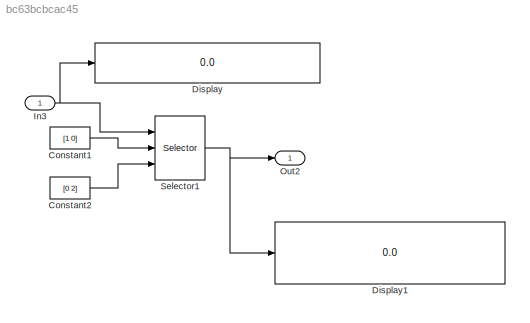
MODEL slx_bc63bcbcac45
KIND model
CONFIG AbsTol = auto
CONFIG FixedStep = auto
CONFIG MaxStep = auto
CONFIG MinStep = auto
CONFIG RelTol = 1e-3
CONFIG SampleTimeConstraint = Unconstrained
CONFIG Solver = FixedStepDiscrete
CONFIG SolverMode = Auto
CONFIG SolverName = FixedStepDiscrete
CONFIG StartTime = 0.0
CONFIG StopTime = 10.0
BLOCK [Constant] Constant1
  Value = [1 0]
BLOCK [Constant] Constant2
  Value = [0 2]
BLOCK [Display] Display
  Decimation = 1
  Ports = [1]
BLOCK [Display] Display1
  Decimation = 1
  Ports = [1]
BLOCK [Inport] In3
  IconDisplay = Port number
  PortDimensions = [2 3]
BLOCK [Outport] Out2
  IconDisplay = Port number
BLOCK [Selector] Selector1
  IndexMode = Zero-based
  IndexOptions = Index vector (port),Starting and ending indices (port)
  Indices = [2 1],1
  InputPortWidth = 3
  NumberOfDimensions = 2
  OutputSizes = 1,2
  Ports = [3, 1]
LINE Constant1:1 -> Selector1:2
LINE Constant2:1 -> Selector1:3
NET In3:1 -> Display:1, Selector1:1
NET Selector1:1 -> Display1:1, Out2:1
note: NET lines group one-source signal fan-out (src -> all destinations, sorted); 1:1 wires keep LINE
